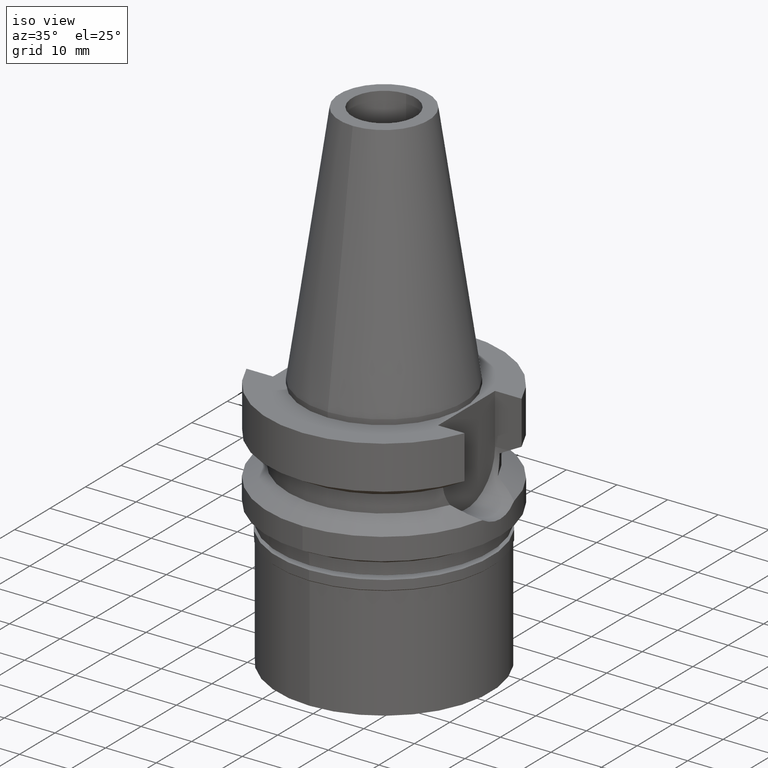
[diagram: clean part render]
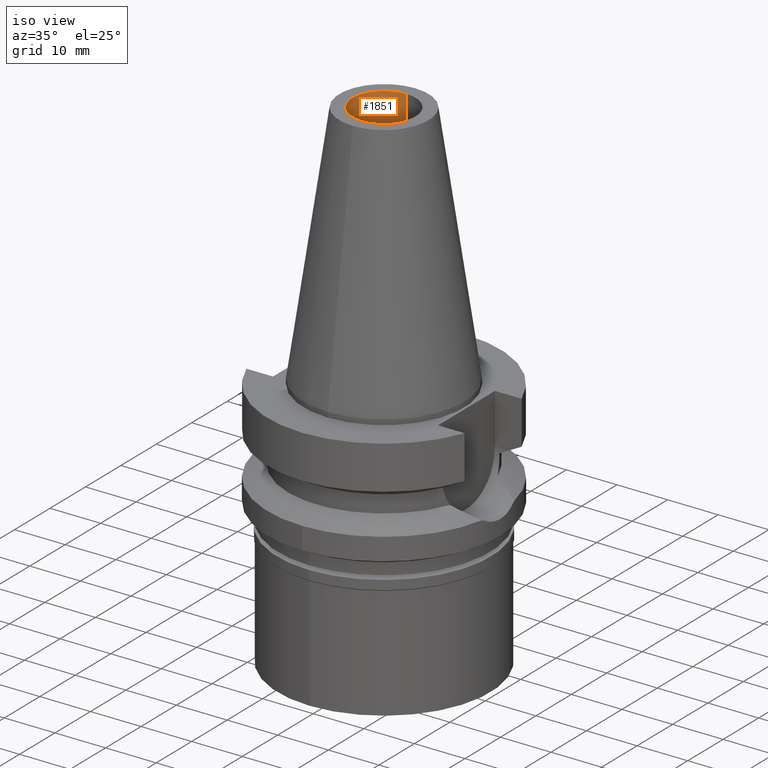
[diagram: same view with one face highlighted and labeled with its STEP entity id]
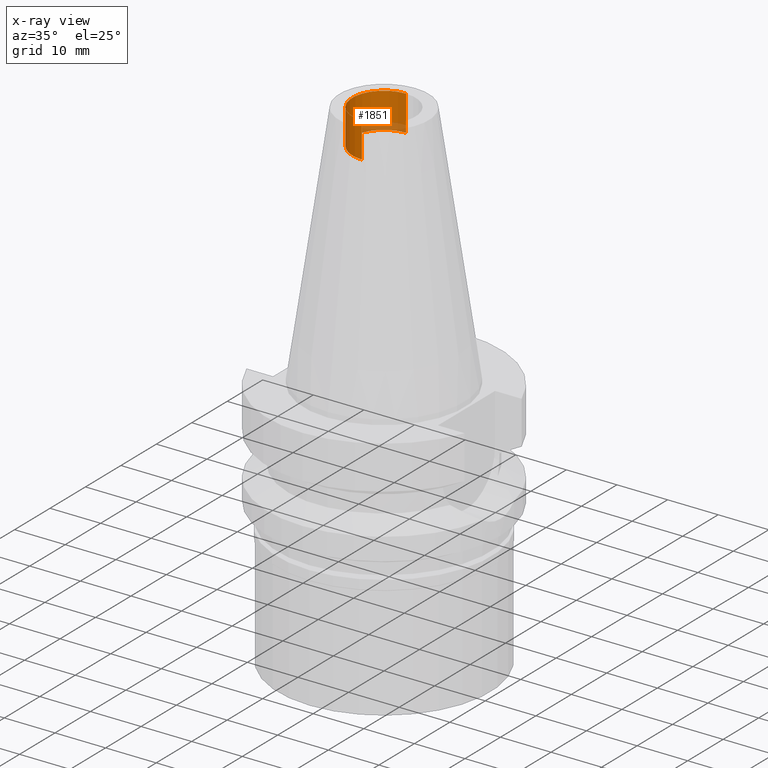
[diagram: x-ray of the same camera — body ghosted, the highlighted face saturated]
A machine part, iso view. The second image highlights one B-rep face of the part: STEP entity #1851.
The next image is the same camera in x-ray: the body ghosted, the highlighted face saturated — about 12% of this face is hidden behind the body in this view.
In plain terms, the highlighted cylindrical surface (partial cylindrical patch) has radius 6.25 mm, axis along (0, 0, -1).
Its self-contained STEP definition (entity closure, byte-faithful):
#164 = VERTEX_POINT ( 'NONE', #999 ) ;
#216 = CYLINDRICAL_SURFACE ( 'NONE', #773, 6.250000000000000000 ) ;
#443 = CARTESIAN_POINT ( 'NONE',  ( 0.0000000000000000000, 6.250000000000000000, 41.39999999999999858 ) ) ;
#498 = CARTESIAN_POINT ( 'NONE',  ( 0.0000000000000000000, -6.250000000000000000, 48.39999999999999858 ) ) ;
#598 = EDGE_LOOP ( 'NONE', ( #959, #1797, #2793, #1931 ) ) ;
#630 = AXIS2_PLACEMENT_3D ( 'NONE', #2292, #3014, #1363 ) ;
#694 = DIRECTION ( 'NONE',  ( 0.0000000000000000000, 0.0000000000000000000, -1.000000000000000000 ) ) ;
#773 = AXIS2_PLACEMENT_3D ( 'NONE', #2135, #694, #2224 ) ;
#875 = LINE ( 'NONE', #443, #2054 ) ;
#909 = DIRECTION ( 'NONE',  ( 0.0000000000000000000, 0.0000000000000000000, 1.000000000000000000 ) ) ;
#959 = ORIENTED_EDGE ( 'NONE', *, *, #1179, .T. ) ;
#999 = CARTESIAN_POINT ( 'NONE',  ( 0.0000000000000000000, 6.250000000000000000, 41.39999999999999858 ) ) ;
#1099 = AXIS2_PLACEMENT_3D ( 'NONE', #2088, #1419, #1364 ) ;
#1125 = CARTESIAN_POINT ( 'NONE',  ( 0.0000000000000000000, -6.250000000000000000, 41.39999999999999858 ) ) ;
#1136 = CIRCLE ( 'NONE', #630, 6.250000000000000000 ) ;
#1179 = EDGE_CURVE ( 'NONE', #1426, #1843, #2646, .T. ) ;
#1188 = CARTESIAN_POINT ( 'NONE',  ( 0.0000000000000000000, 6.250000000000000000, 48.39999999999999858 ) ) ;
#1220 = FACE_OUTER_BOUND ( 'NONE', #598, .T. ) ;
#1363 = DIRECTION ( 'NONE',  ( 0.0000000000000000000, -1.000000000000000000, 0.0000000000000000000 ) ) ;
#1364 = DIRECTION ( 'NONE',  ( 0.0000000000000000000, 1.000000000000000000, 0.0000000000000000000 ) ) ;
#1419 = DIRECTION ( 'NONE',  ( 0.0000000000000000000, 0.0000000000000000000, 1.000000000000000000 ) ) ;
#1426 = VERTEX_POINT ( 'NONE', #1188 ) ;
#1591 = EDGE_CURVE ( 'NONE', #2071, #164, #1136, .T. ) ;
#1661 = VECTOR ( 'NONE', #1800, 1000.000000000000000 ) ;
#1791 = EDGE_CURVE ( 'NONE', #2071, #1843, #2080, .T. ) ;
#1797 = ORIENTED_EDGE ( 'NONE', *, *, #1791, .F. ) ;
#1800 = DIRECTION ( 'NONE',  ( 0.0000000000000000000, 0.0000000000000000000, 1.000000000000000000 ) ) ;
#1843 = VERTEX_POINT ( 'NONE', #498 ) ;
#1851 = ADVANCED_FACE ( 'NONE', ( #1220 ), #216, .F. ) ;
#1931 = ORIENTED_EDGE ( 'NONE', *, *, #2889, .T. ) ;
#2054 = VECTOR ( 'NONE', #909, 1000.000000000000000 ) ;
#2071 = VERTEX_POINT ( 'NONE', #2899 ) ;
#2080 = LINE ( 'NONE', #1125, #1661 ) ;
#2088 = CARTESIAN_POINT ( 'NONE',  ( 0.0000000000000000000, 1.873342208656000186E-14, 48.39999999999999858 ) ) ;
#2135 = CARTESIAN_POINT ( 'NONE',  ( 0.0000000000000000000, 1.873342208656000186E-14, 52.97000000000000597 ) ) ;
#2224 = DIRECTION ( 'NONE',  ( 0.0000000000000000000, -1.000000000000000000, 0.0000000000000000000 ) ) ;
#2292 = CARTESIAN_POINT ( 'NONE',  ( 0.0000000000000000000, 1.873342208656000186E-14, 41.39999999999999858 ) ) ;
#2646 = CIRCLE ( 'NONE', #1099, 6.250000000000000000 ) ;
#2793 = ORIENTED_EDGE ( 'NONE', *, *, #1591, .T. ) ;
#2889 = EDGE_CURVE ( 'NONE', #164, #1426, #875, .T. ) ;
#2899 = CARTESIAN_POINT ( 'NONE',  ( 0.0000000000000000000, -6.250000000000000000, 41.39999999999999858 ) ) ;
#3014 = DIRECTION ( 'NONE',  ( 0.0000000000000000000, 0.0000000000000000000, -1.000000000000000000 ) ) ;